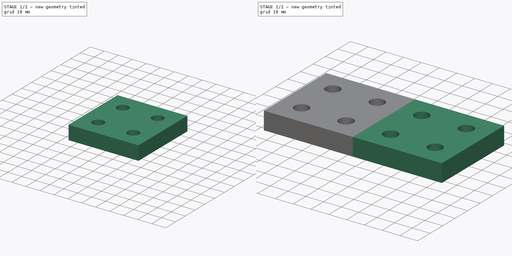
[diagram: build sequence overview — one tinted view per stage of 2, left to right]
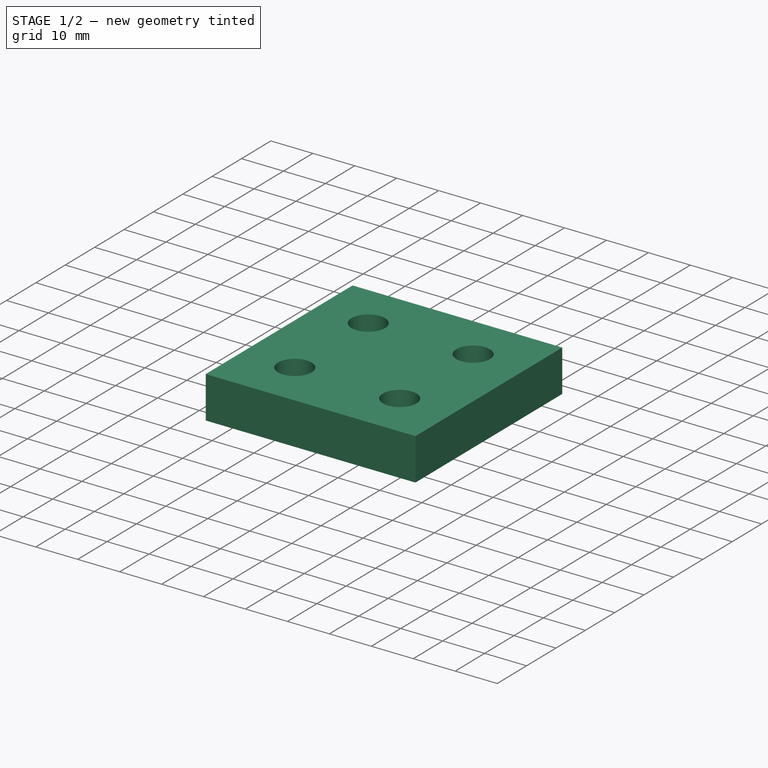
[diagram: stage 1 of 2 — iso view after this stage's code; geometry added in this stage tinted green]
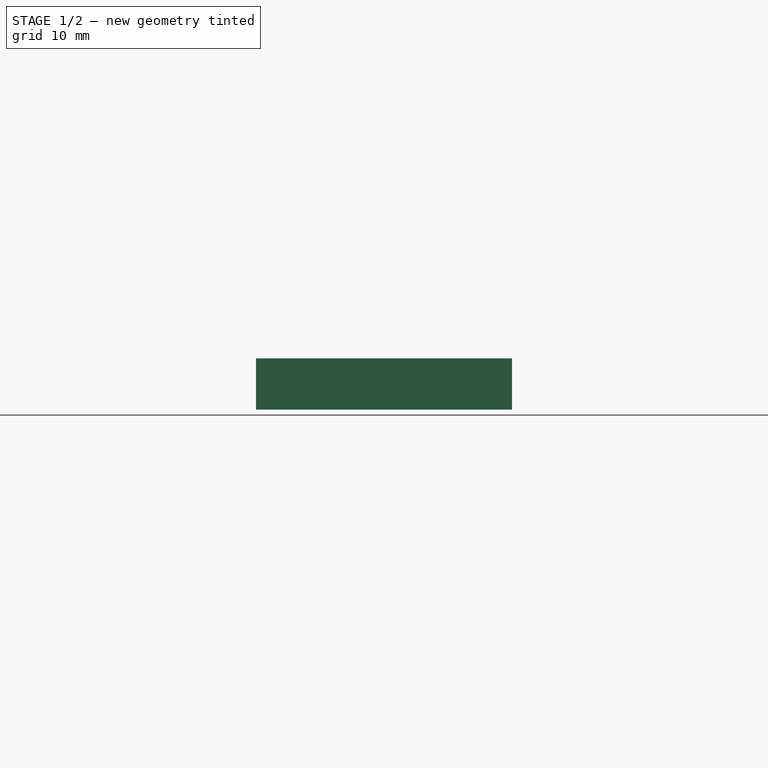
[diagram: stage 1 of 2 — front view after this stage's code; geometry added in this stage tinted green]
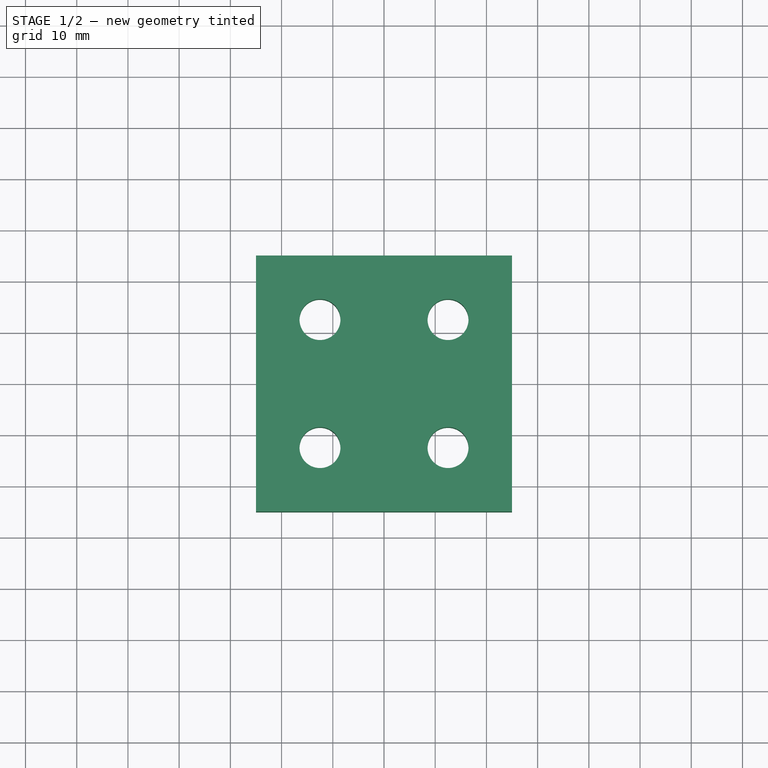
[diagram: stage 1 of 2 — top view after this stage's code; geometry added in this stage tinted green]
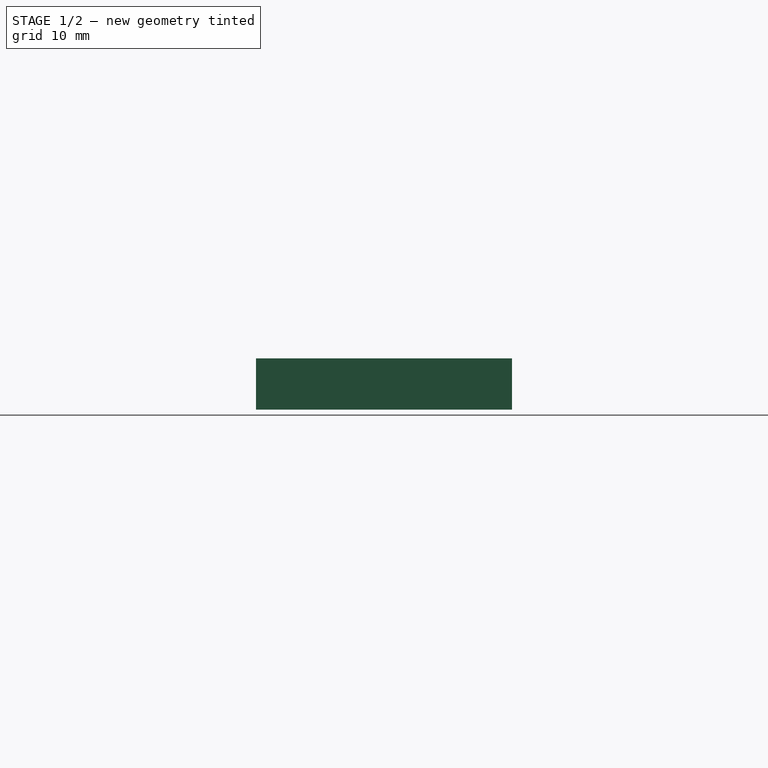
[diagram: stage 1 of 2 — right view after this stage's code; geometry added in this stage tinted green]
FCSTD DOCUMENT  (FreeCAD 2023.521R36908 (Git))
Label: mirror-tool
License: All rights reserved
objects: Sketcher::SketchObject×1, Spreadsheet::Sheet×1, PartDesign::Pad×1, PartDesign::Mirrored×1, PartDesign::Body×1
note: 9 computed .brp shape members not serialized (recipe doc carries the construction recipe); baked Part::Feature solids carry a one-line shape summary decoded from their .brp

FEATURE [Sketcher::SketchObject] Sketch
  ArcFitTolerance = 1e-06
  AttachmentSupport = -> [XY_Plane]
  ExternalBSplineMaxDegree = 5
  ExternalBSplineTolerance = 0.0001
  FullyConstrained = true
  InternalTolerance = 1e-06
  InvalidShape = false
  MakeInternals = false
  MapMode = 5
  Support = -> [XY_Plane]
  TreeRank = 13
  ValidateShape = false
  expr: Constraints[15] = <<parameters>>.height / 2
  expr: Constraints[17] = <<parameters>>.width / 2
  expr: Constraints[18] = <<parameters>>.height / 4
  expr: Constraints[19] = <<parameters>>.width / 4
  expr: Constraints[20] = <<parameters>>.hole_radius
  expr: Constraints[24] = <<parameters>>.height / 4
  expr: Constraints[25] = <<parameters>>.height / 4
  expr: Constraints[26] = <<parameters>>.height / 4
  expr: Constraints[27] = <<parameters>>.width / 4
  expr: Constraints[28] = <<parameters>>.width / 4
  expr: Constraints[29] = <<parameters>>.width / 4
  expr: Constraints[4] = <<parameters>>.width
  expr: Constraints[5] = <<parameters>>.height
  sketch-geometry (14):
    g0: LineSegment StartX=25 StartY=25 StartZ=0 EndX=-25 EndY=25 EndZ=0
    g1: LineSegment StartX=-25 StartY=25 StartZ=0 EndX=-25 EndY=-25 EndZ=0
    g2: LineSegment StartX=-25 StartY=-25 StartZ=0 EndX=25 EndY=-25 EndZ=0
    g3: LineSegment StartX=25 StartY=-25 StartZ=0 EndX=25 EndY=25 EndZ=0
    g4: GeomPoint [constr] X=-25 Y=25 Z=0
    g5: GeomPoint [constr] X=-25 Y=25 Z=0
    g6: GeomPoint [constr] X=-25 Y=25 Z=0
    g7: GeomPoint [constr] X=-25 Y=25 Z=0
    g8: GeomPoint [constr] X=-25 Y=25 Z=0
    g9: GeomPoint [constr] X=-25 Y=25 Z=0
    g10: Circle CenterX=12.5 CenterY=12.5 CenterZ=0 NormalX=0 NormalY=0 NormalZ=1 AngleXU=0 Radius=4
    g11: Circle CenterX=-12.5 CenterY=12.5 CenterZ=0 NormalX=0 NormalY=0 NormalZ=1 AngleXU=0 Radius=4
    g12: Circle CenterX=12.5 CenterY=-12.5 CenterZ=0 NormalX=0 NormalY=0 NormalZ=1 AngleXU=0 Radius=4
    g13: Circle CenterX=-12.5 CenterY=-12.5 CenterZ=0 NormalX=0 NormalY=0 NormalZ=1 AngleXU=0 Radius=4
  constraints (30):
    c: Horizontal(g2)
    c: Vertical(g3)
    c: Horizontal(g0)
    c: Vertical(g1)
    c: DistanceX(g0,g0) = 50
    c: DistanceY(g3,g3) = 50
    c: Coincident(g4,g1)
    c: Coincident(g5,g0)
    c: Coincident(g6,g1)
    c: Coincident(g7,g0)
    c: Coincident(g8,g1)
    c: Coincident(g9,g0)
    c: Coincident(g1,g0)
    c: Coincident(g1,g2)
    c: Coincident(g3,g0)
    c: DistanceY(g0) = 25
    c: Coincident(g2,g3)
    c: DistanceX(g-1,g0) = 25
    c: DistanceX(g10,g0) = 12.5
    c: DistanceY(g10,g0) = 12.5
    c: Radius(g10) = 4
    c: Radius(g11) = 4
    c: Radius(g12) = 4
    c: Radius(g13) = 4
    c: DistanceY(g11,g0) = 12.5
    c: DistanceY(g1,g13) = 12.5
    c: DistanceY(g2,g12) = 12.5
    c: DistanceX(g0,g11) = 12.5
    c: DistanceX(g1,g13) = 12.5
    c: DistanceX(g12,g2) = 12.5
FEATURE [Spreadsheet::Sheet] Spreadsheet  label="parameters"
  PythonMode = false
  ShowCells = 0
  TreeRank = 12
  cells = A1=height; B1(height)=50; A2=width; B2(width)=50; A3=hole_radius; B3(hole_radius)=4
FEATURE [PartDesign::Pad] Pad
  AddSubType = 0
  AlongSketchNormal = false
  AutoTaperInnerAngle = true
  CheckUpToFaceLimits = true
  ClaimChildren = false
  Direction = (0,0,1)
  Fit = 0
  FitJoin = 0
  InnerFit = 0
  InnerFitJoin = 0
  InvalidShape = false
  Length = 10
  Length2 = 10
  Linearize = true
  NewSolid = false
  Profile = -> Sketch
  ReferenceAxis = -> Sketch [N_Axis]
  Suppress = false
  TaperInnerAngle = 0
  TaperInnerAngleRev = 0
  TreeRank = 13
  Type = 0
  ValidateShape = true
  _ProfileBasedVersion = 1
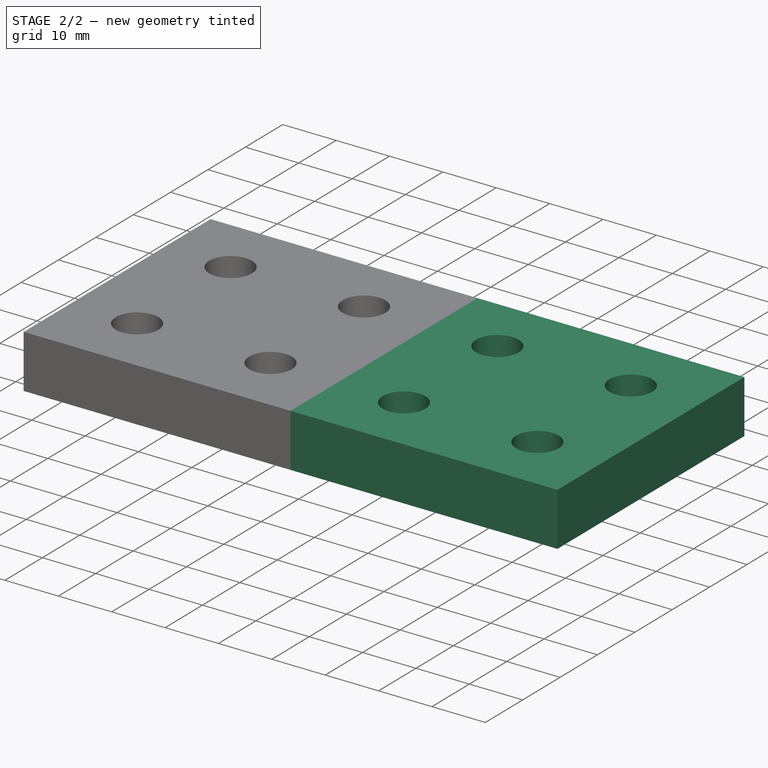
[diagram: stage 2 of 2 — iso view after this stage's code; geometry added in this stage tinted green]
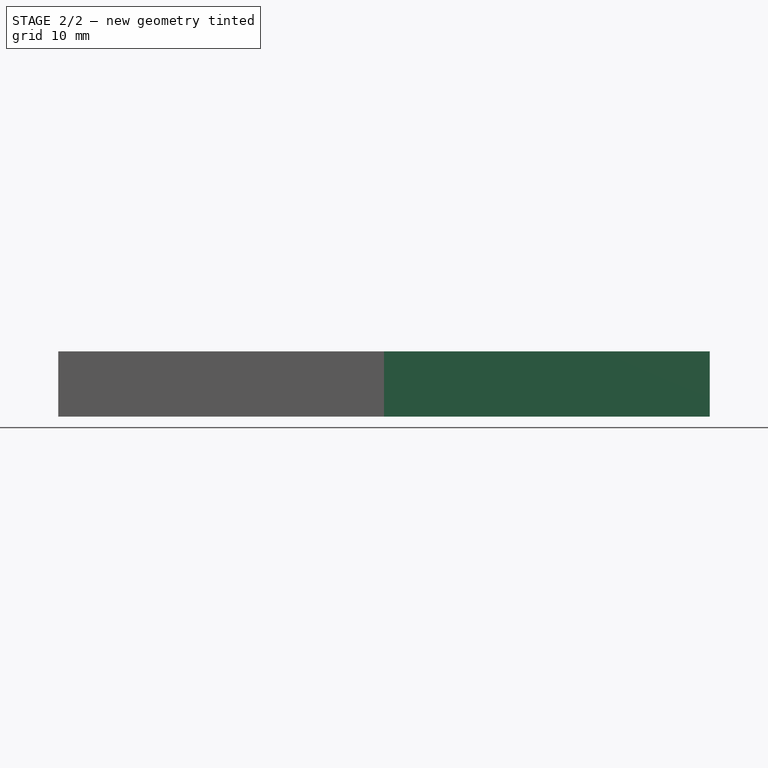
[diagram: stage 2 of 2 — front view after this stage's code; geometry added in this stage tinted green]
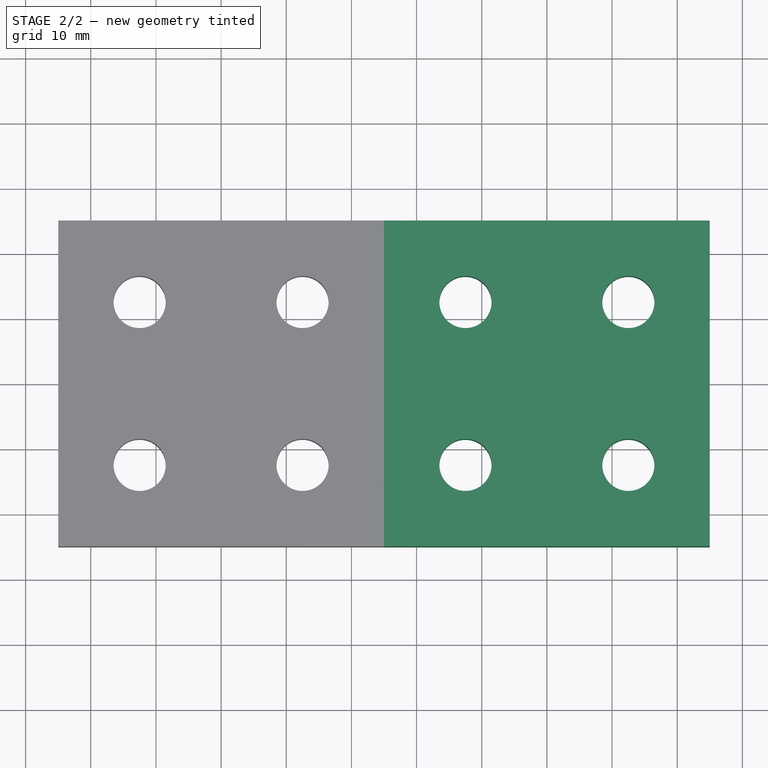
[diagram: stage 2 of 2 — top view after this stage's code; geometry added in this stage tinted green]
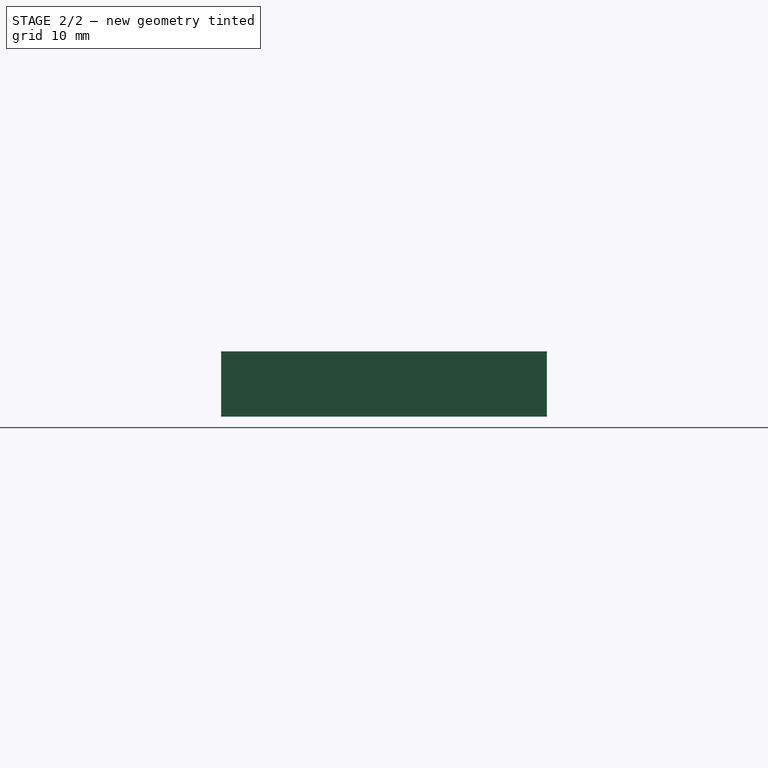
[diagram: stage 2 of 2 — right view after this stage's code; geometry added in this stage tinted green]
FEATURE [PartDesign::Mirrored] Mirrored
  AddSubType = 0
  BaseFeature = -> Pad
  CopyShape = false
  InvalidShape = false
  MirrorPlane = -> Pad [Face4]
  NewSolid = false
  OriginalSubs = -> [Pad]
  Originals = -> [Pad]
  ParallelTransform = true
  SubTransform = true
  Suppress = false
  TreeRank = 14
  ValidateShape = true
  _Version = 3
FEATURE [PartDesign::Body] Body
  AutoGroupSolids = false
  ClaimAllChildren = false
  ExportMode = 0
  Group = -> [Sketch,Pad,Mirrored]
  InvalidShape = false
  Origin = -> Origin
  Tip = -> Mirrored
  TreeRank = 10
  ValidateShape = false
  _ExportChildren = -> [Pad,Mirrored]
  _GroupVersion = 1
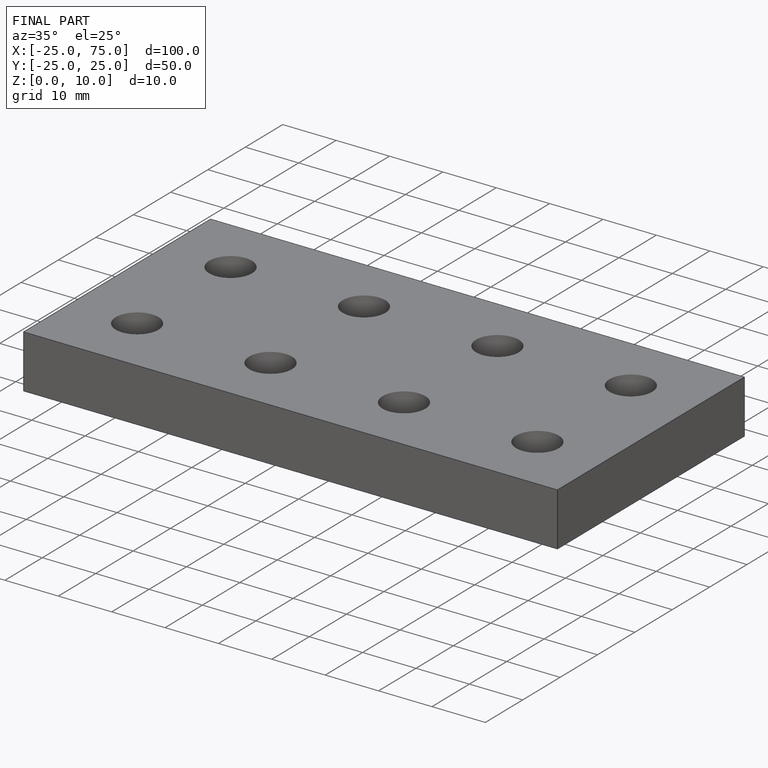
[diagram: finished part — iso view with bounding-box wireframe]
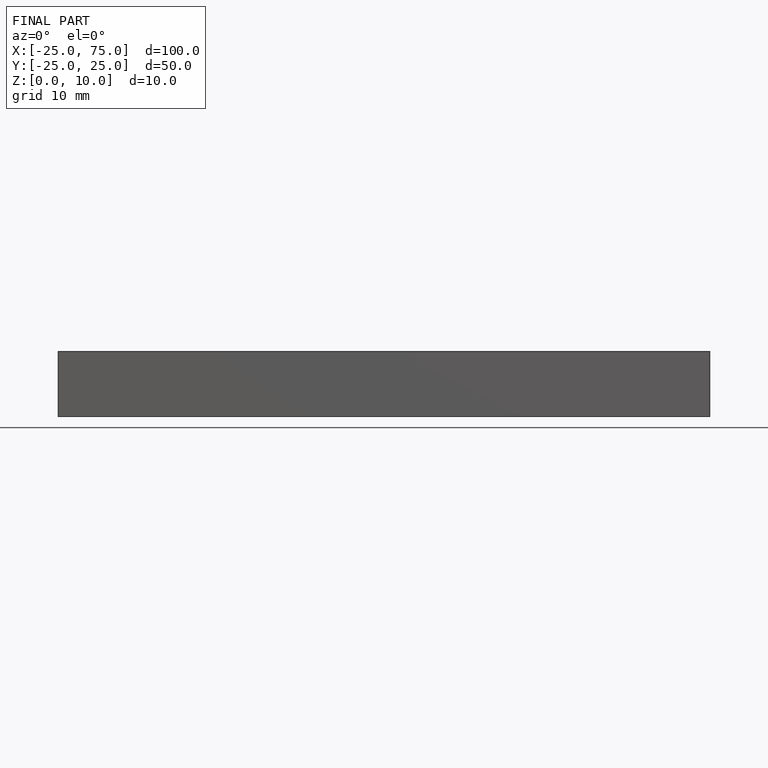
[diagram: finished part — front view with bounding-box wireframe]
